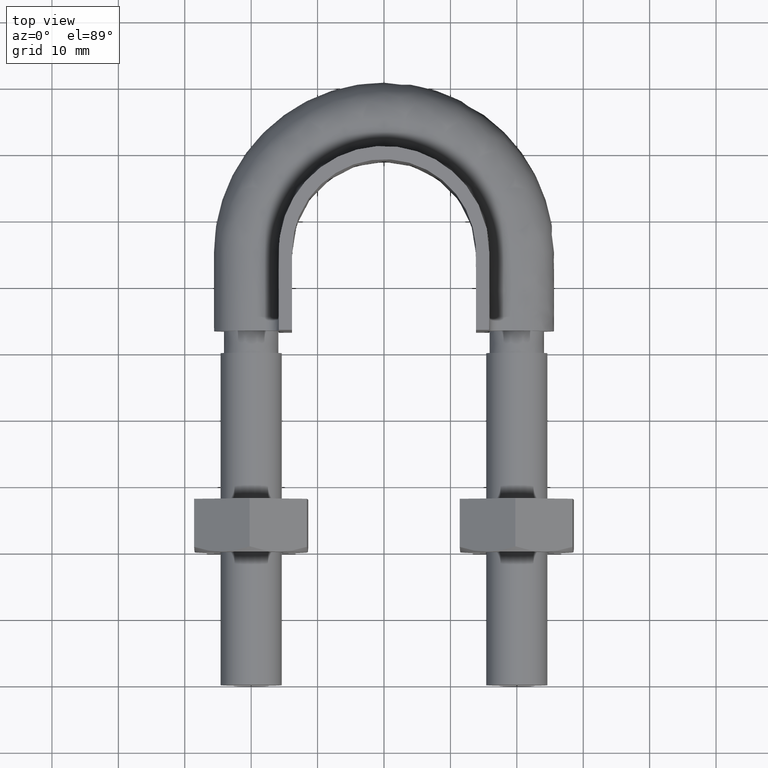
[diagram: clean part render]
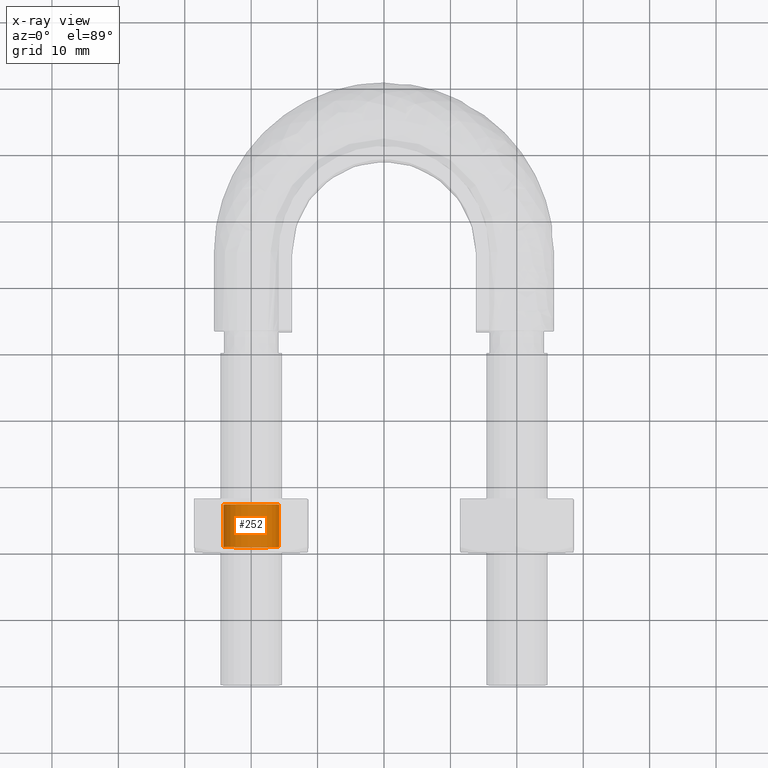
[diagram: x-ray — body ghosted, one internal face saturated and labeled with its STEP entity id]
A machine part, top view, then the same camera in x-ray: the body is ghosted and one INTERNAL B-rep face — a face not visible from any outside direction — is saturated and labeled: STEP entity #252.
In plain terms, the highlighted cylindrical surface (bore or boss wall) has radius 4.188 mm, axis along (0, 1, 0).
Its self-contained STEP definition (entity closure, byte-faithful):
#252 = ADVANCED_FACE( '', ( #358, #359 ), #360, .F. );
#358 = FACE_OUTER_BOUND( '', #1216, .T. );
#359 = FACE_OUTER_BOUND( '', #1217, .T. );
#360 = CYLINDRICAL_SURFACE( '', #1218, 4.18800000000000 );
#1216 = EDGE_LOOP( '', ( #1529 ) );
#1217 = EDGE_LOOP( '', ( #1530 ) );
#1218 = AXIS2_PLACEMENT_3D( '', #1531, #1532, #1533 );
#1529 = ORIENTED_EDGE( '', *, *, #1806, .F. );
#1530 = ORIENTED_EDGE( '', *, *, #1770, .T. );
#1531 = CARTESIAN_POINT( '', ( -20.0000000000000, 28.0000000000024, 5.01541082970070E-015 ) );
#1532 = DIRECTION( '', ( 4.89842541528950E-016, 1.00000000000000, 6.12303176911188E-017 ) );
#1533 = DIRECTION( '', ( -0.999792881822458, 4.90987229944995E-016, -0.0203517433441231 ) );
#1770 = EDGE_CURVE( '', #1923, #1923, #1924, .T. );
#1806 = EDGE_CURVE( '', #1979, #1979, #1980, .F. );
#1923 = VERTEX_POINT( '', #2330 );
#1924 = CIRCLE( '', #2331, 4.18800000000000 );
#1979 = VERTEX_POINT( '', #2435 );
#1980 = CIRCLE( '', #2436, 4.18800000000000 );
#2330 = CARTESIAN_POINT( '', ( -24.1880000000000, 27.1880000000024, 4.96569181173551E-015 ) );
#2331 = AXIS2_PLACEMENT_3D( '', #2641, #2642, #2643 );
#2435 = CARTESIAN_POINT( '', ( -15.8120000000000, 20.8120000000024, 4.57528730613693E-015 ) );
#2436 = AXIS2_PLACEMENT_3D( '', #2700, #2701, #2702 );
#2641 = CARTESIAN_POINT( '', ( -20.0000000000000, 27.1880000000024, 4.96569181173551E-015 ) );
#2642 = DIRECTION( '', ( 4.89842541528951E-016, 1.00000000000000, 6.12303176911188E-017 ) );
#2643 = DIRECTION( '', ( -1.00000000000000, 4.89842541528951E-016, 0.000000000000000 ) );
#2700 = CARTESIAN_POINT( '', ( -20.0000000000000, 20.8120000000024, 4.57528730613693E-015 ) );
#2701 = DIRECTION( '', ( -4.89842541528950E-016, -1.00000000000000, -6.12303176911189E-017 ) );
#2702 = DIRECTION( '', ( 1.00000000000000, -4.89842541528950E-016, 0.000000000000000 ) );